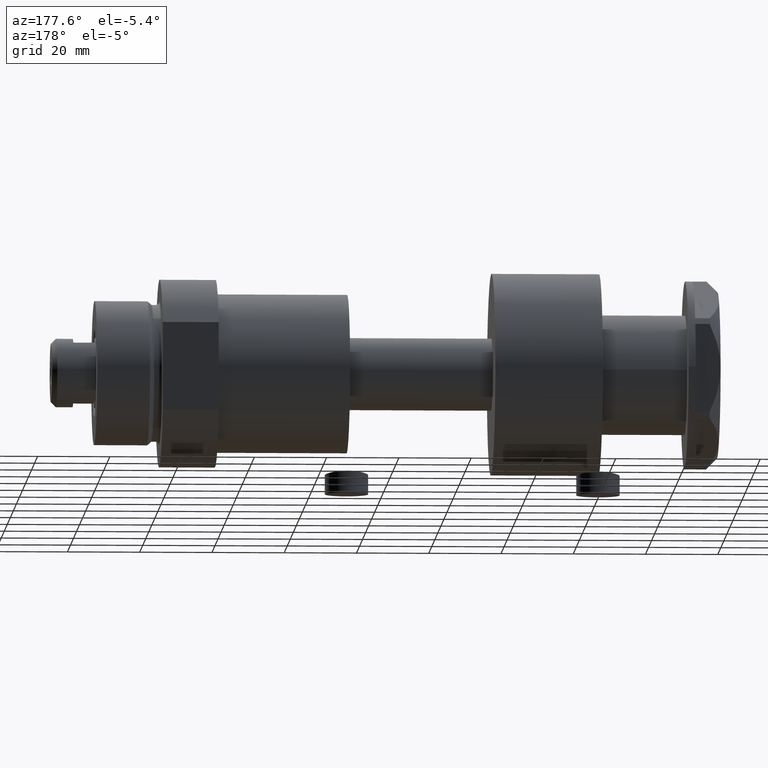
[diagram: clean part render]
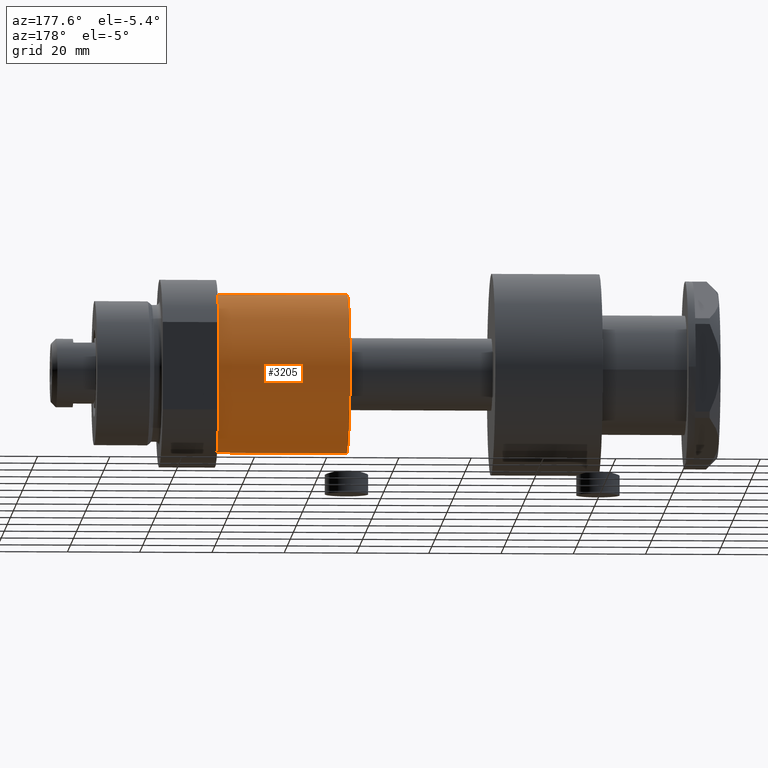
[diagram: same view with one face highlighted and labeled with its STEP entity id]
A machine part, auxiliary view. The second image highlights one B-rep face of the part: STEP entity #3205.
In plain terms, the highlighted cylindrical surface (partial cylindrical patch) has radius 22 mm, axis along (1, 0, -0).
Its self-contained STEP definition (entity closure, byte-faithful):
#158 = LINE ( 'NONE', #2394, #596 ) ;
#412 = CIRCLE ( 'NONE', #1010, 22.00000000000000000 ) ;
#497 = ORIENTED_EDGE ( 'NONE', *, *, #2531, .T. ) ;
#516 = ORIENTED_EDGE ( 'NONE', *, *, #1744, .T. ) ;
#574 = CARTESIAN_POINT ( 'NONE',  ( 0.000000000000000000, 0.000000000000000000, -36.39999999999999858 ) ) ;
#596 = VECTOR ( 'NONE', #1315, 1000.000000000000000 ) ;
#733 = VERTEX_POINT ( 'NONE', #2812 ) ;
#734 = DIRECTION ( 'NONE',  ( -1.000000000000000000, 0.000000000000000000, 0.000000000000000000 ) ) ;
#755 = AXIS2_PLACEMENT_3D ( 'NONE', #574, #3074, #2751 ) ;
#781 = VERTEX_POINT ( 'NONE', #3146 ) ;
#858 = CARTESIAN_POINT ( 'NONE',  ( -22.00000000000000000, 2.694222958124176809E-15, -36.39999999999999858 ) ) ;
#985 = LINE ( 'NONE', #1627, #2742 ) ;
#1006 = DIRECTION ( 'NONE',  ( -0.000000000000000000, -0.000000000000000000, 1.000000000000000000 ) ) ;
#1009 = EDGE_CURVE ( 'NONE', #2088, #3378, #2100, .T. ) ;
#1010 = AXIS2_PLACEMENT_3D ( 'NONE', #2893, #2303, #3408 ) ;
#1092 = CYLINDRICAL_SURFACE ( 'NONE', #755, 22.00000000000000000 ) ;
#1190 = ORIENTED_EDGE ( 'NONE', *, *, #1009, .F. ) ;
#1227 = ORIENTED_EDGE ( 'NONE', *, *, #2406, .F. ) ;
#1315 = DIRECTION ( 'NONE',  ( -0.000000000000000000, -0.000000000000000000, 1.000000000000000000 ) ) ;
#1627 = CARTESIAN_POINT ( 'NONE',  ( -22.00000000000000000, 2.694222958124176809E-15, -36.39999999999999858 ) ) ;
#1744 = EDGE_CURVE ( 'NONE', #733, #781, #412, .T. ) ;
#1856 = CARTESIAN_POINT ( 'NONE',  ( 22.00000000000000000, 0.000000000000000000, -36.39999999999999858 ) ) ;
#1904 = DIRECTION ( 'NONE',  ( 0.000000000000000000, 0.000000000000000000, -1.000000000000000000 ) ) ;
#2088 = VERTEX_POINT ( 'NONE', #858 ) ;
#2100 = CIRCLE ( 'NONE', #3139, 22.00000000000000000 ) ;
#2303 = DIRECTION ( 'NONE',  ( 0.000000000000000000, 0.000000000000000000, -1.000000000000000000 ) ) ;
#2394 = CARTESIAN_POINT ( 'NONE',  ( 22.00000000000000000, 0.000000000000000000, -36.39999999999999858 ) ) ;
#2406 = EDGE_CURVE ( 'NONE', #3378, #781, #158, .T. ) ;
#2531 = EDGE_CURVE ( 'NONE', #2088, #733, #985, .T. ) ;
#2742 = VECTOR ( 'NONE', #1006, 1000.000000000000000 ) ;
#2751 = DIRECTION ( 'NONE',  ( 1.000000000000000000, 0.000000000000000000, 0.000000000000000000 ) ) ;
#2767 = FACE_OUTER_BOUND ( 'NONE', #3430, .T. ) ;
#2812 = CARTESIAN_POINT ( 'NONE',  ( -22.00000000000000000, 2.694222958124176809E-15, 0.000000000000000000 ) ) ;
#2893 = CARTESIAN_POINT ( 'NONE',  ( 0.000000000000000000, 0.000000000000000000, 0.000000000000000000 ) ) ;
#3074 = DIRECTION ( 'NONE',  ( -0.000000000000000000, -0.000000000000000000, 1.000000000000000000 ) ) ;
#3139 = AXIS2_PLACEMENT_3D ( 'NONE', #3564, #1904, #734 ) ;
#3146 = CARTESIAN_POINT ( 'NONE',  ( 22.00000000000000000, 0.000000000000000000, 0.000000000000000000 ) ) ;
#3205 = ADVANCED_FACE ( 'NONE', ( #2767 ), #1092, .T. ) ;
#3378 = VERTEX_POINT ( 'NONE', #1856 ) ;
#3408 = DIRECTION ( 'NONE',  ( -1.000000000000000000, 0.000000000000000000, 0.000000000000000000 ) ) ;
#3430 = EDGE_LOOP ( 'NONE', ( #1190, #497, #516, #1227 ) ) ;
#3564 = CARTESIAN_POINT ( 'NONE',  ( 0.000000000000000000, 0.000000000000000000, -36.39999999999999858 ) ) ;